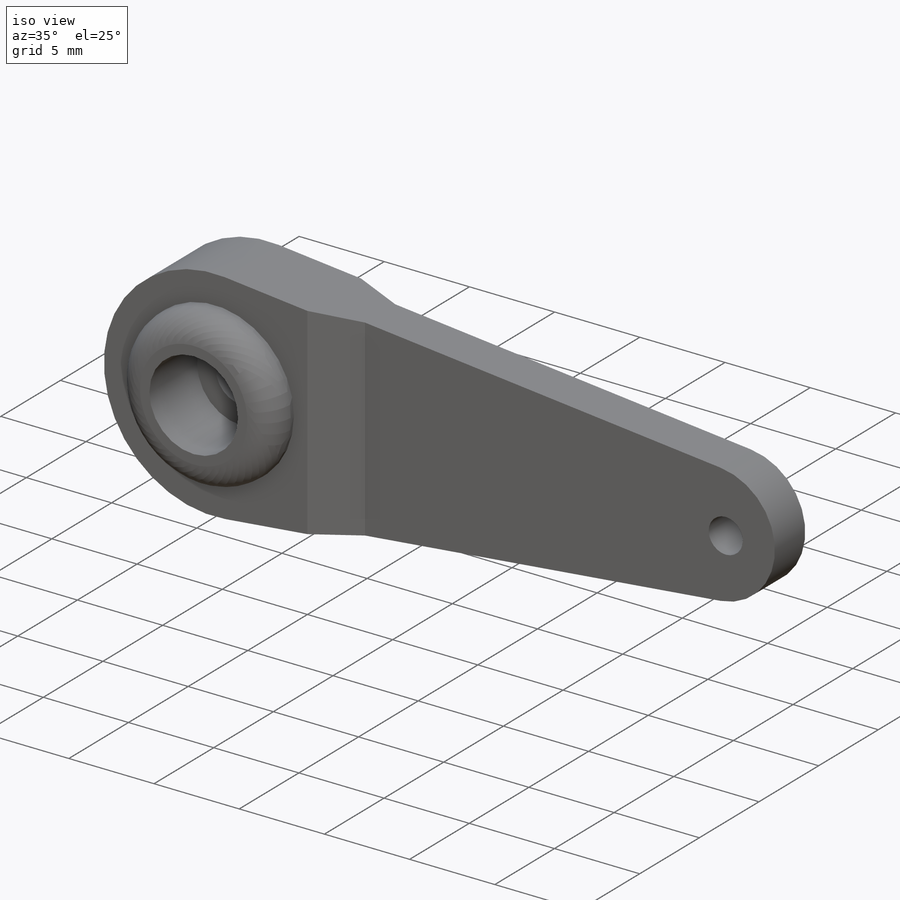
[diagram: iso view]
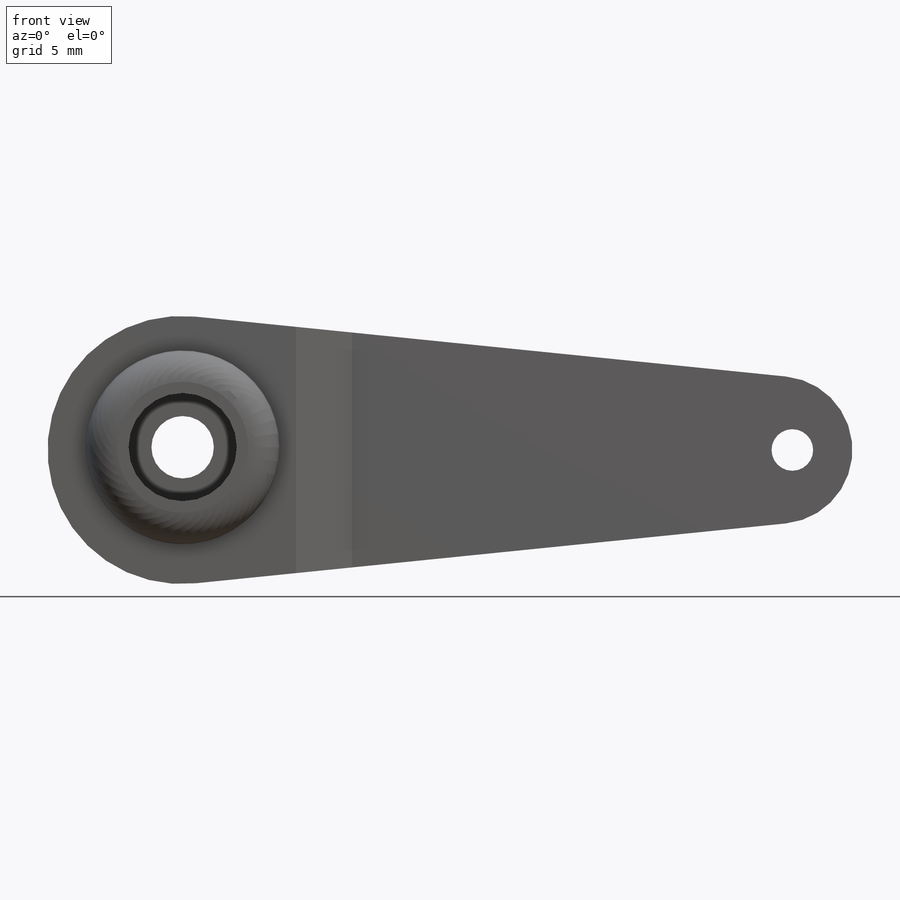
[diagram: front view]
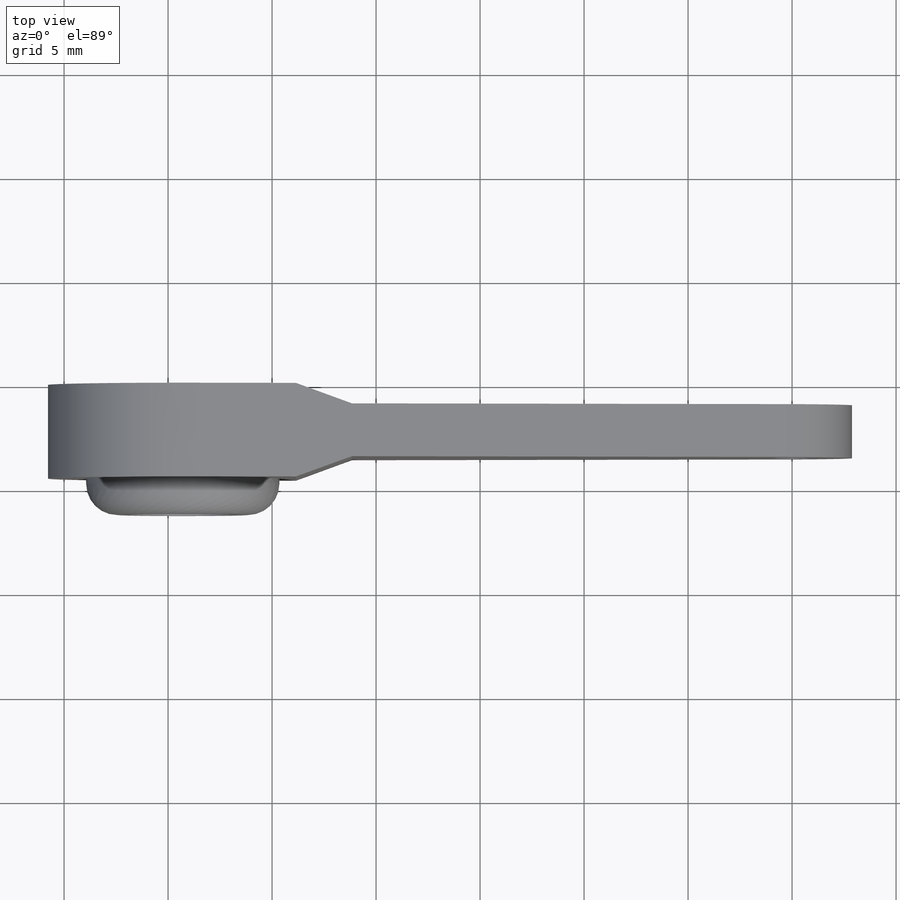
[diagram: top view]
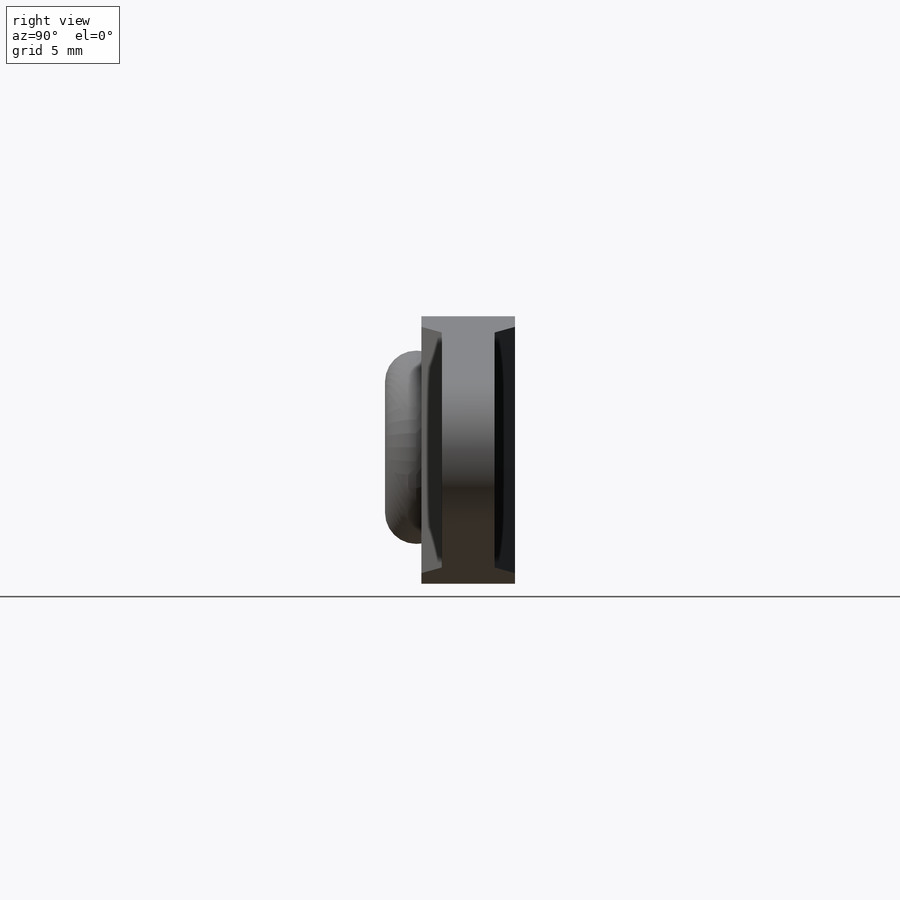
[diagram: right view]
SOLIDWORKS PART (.sldprt)
format: sldprt  version: not decoded by parser v0  size: 121,344 bytes
history: native  units: mm
features: sketch x6, cut_extrude x4, extrude x2, material x1, fillet x1, chamfer x1 (+14 scaffold rows collapsed)
feature tree (29):
  scaffold x14  (default folders/planes/origin — collapsed)
  material  "Material <not specified>"
  sketch  "Sketch1"  dims[D1=12.89mm D2=7.1mm D3=28.7mm]
  extrude  "Extrude1"  Depth=4.5mm
  sketch  "Sketch2"  dims[D1=~2.902512mm]
  extrude  "Extrude2"  Depth=1.75mm
  fillet  "Fillet1"  Radius=1.5mm
  sketch  "Sketch3"  dims[D1=~1.667416mm]
  cut_extrude  "Extrude3"  Depth=4mm
  sketch  "Sketch4"  dims[D1=3.0mm]
  cut_extrude  "Extrude4"  Depth=6mm
  sketch  "Sketch5"  dims[D1=~0.66029mm]
  cut_extrude  "Extrude5"  [1 undecoded]
  sketch  "Sketch6"  dims[D1=2.54mm]
  cut_extrude  "Extrude6"  [1 undecoded]
  chamfer  "Chamfer1"  Distance=1mm Angle=70deg
decode coverage: 12 of 14 modeling features carry decoded parameters
note: ~ marks probable driven/reference dimensions
note: 2 parameter values undecoded
note: suppression state not decoded; provenance and decode notes live in map.json
